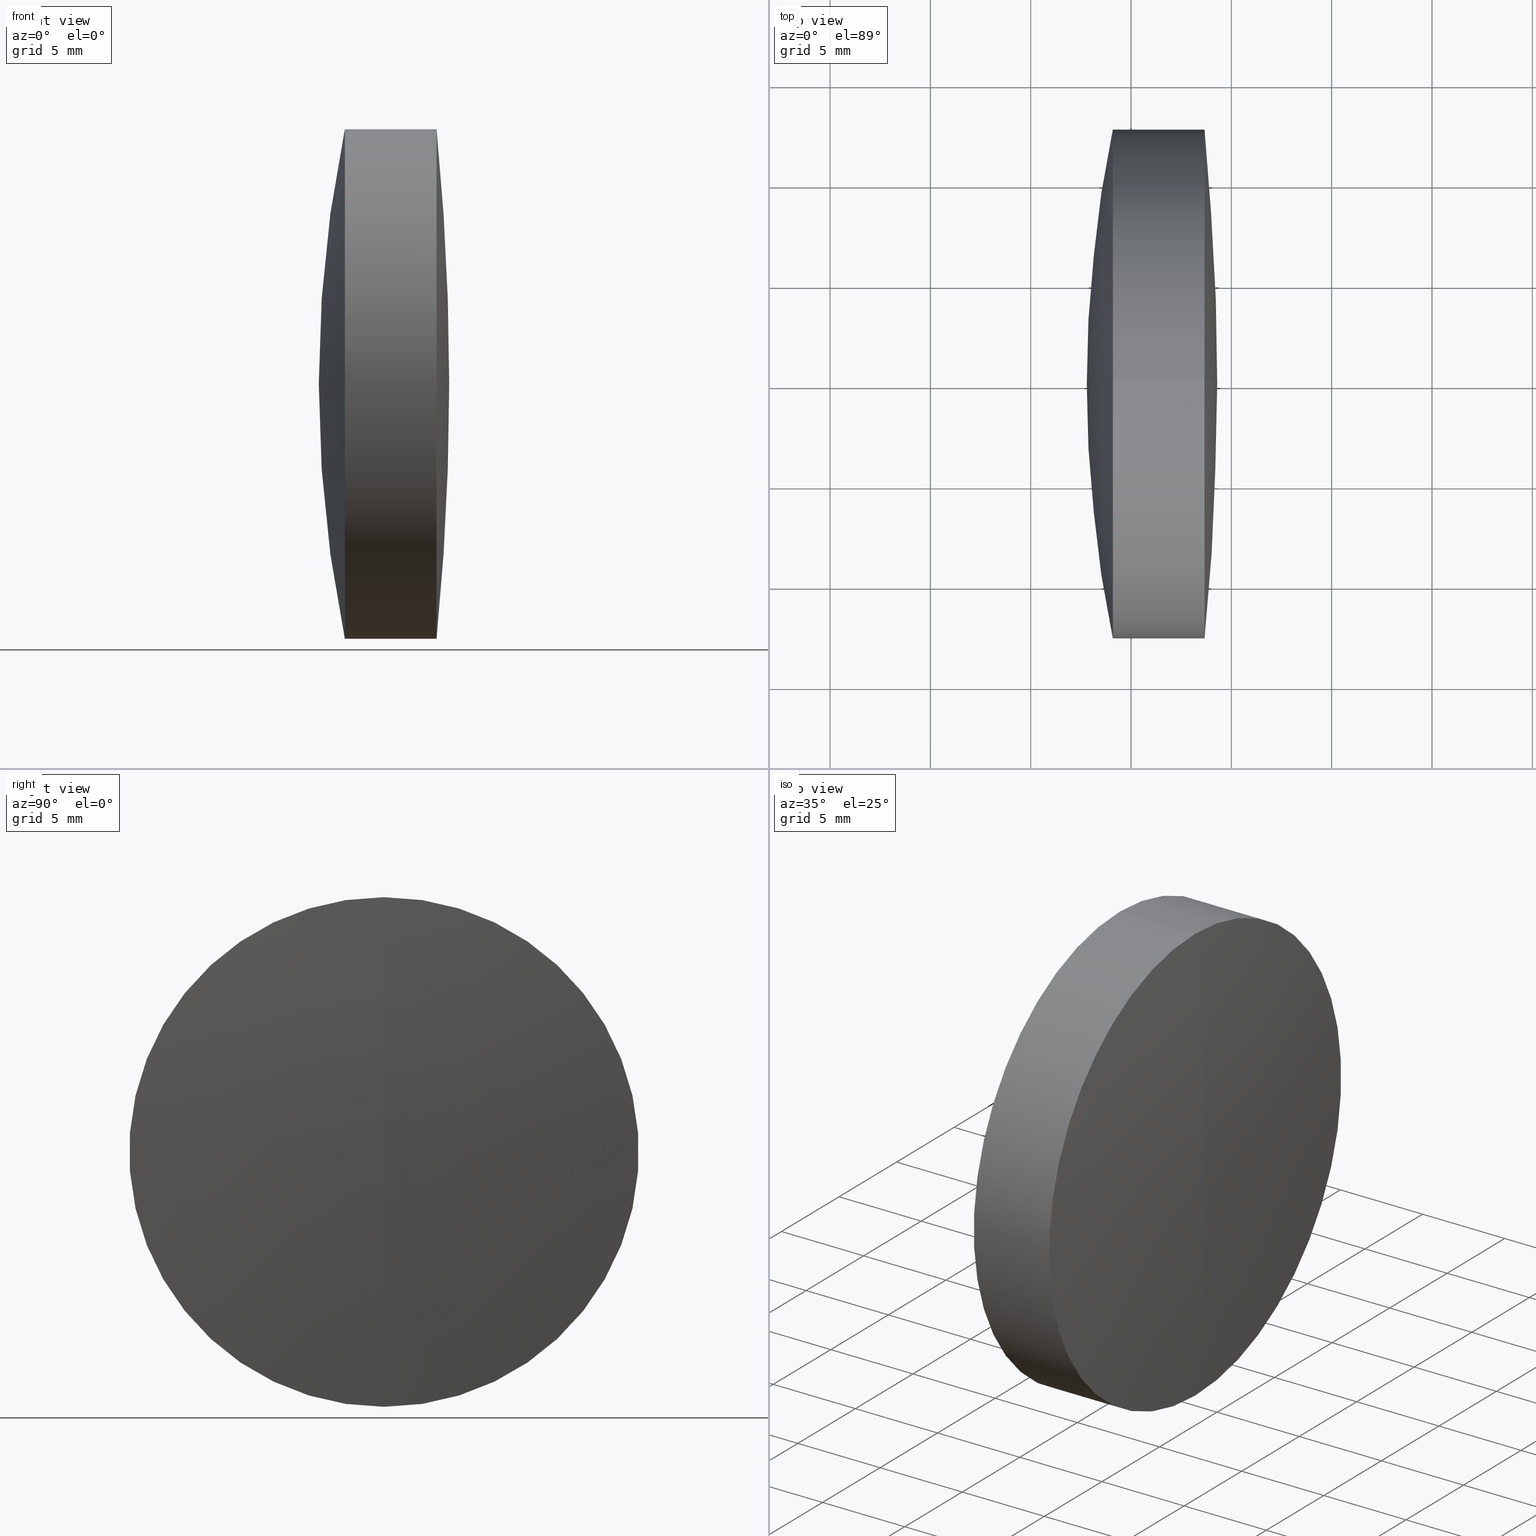
[diagram: canonical four-view strip — front | top / right | iso, engineering-drawing reading convention]
A machine part, canonical four-view strip (front | top / right | iso — engineering-drawing reading convention). The complete STEP part file that produces these views, byte-faithful:
ISO-10303-21;
HEADER;
FILE_DESCRIPTION (( 'STEP AP214' ),
    '1' );
FILE_NAME ('145058.STEP',
    '2019-05-14T02:59:13',
    ( 'user' ),
    ( '΢���й�' ),
    'SwSTEP 2.0',
    'SolidWorks 2016',
    '' );
FILE_SCHEMA (( 'AUTOMOTIVE_DESIGN' ));
ENDSEC;

DATA;
#1 = PRESENTATION_LAYER_ASSIGNMENT (  '', '', ( #212 ) ) ;
#2 = DIRECTION ( 'NONE',  ( 0.0000000000000000000, 0.0000000000000000000, 1.000000000000000000 ) ) ;
#3 = ORIENTED_EDGE ( 'NONE', *, *, #243, .T. ) ;
#4 = DIRECTION ( 'NONE',  ( -1.000000000000000000, -0.0000000000000000000, -0.0000000000000000000 ) ) ;
#5 = VERTEX_POINT ( 'NONE', #275 ) ;
#6 = DIRECTION ( 'NONE',  ( 0.0000000000000000000, 1.000000000000000000, 0.0000000000000000000 ) ) ;
#7 = CARTESIAN_POINT ( 'NONE',  ( -0.5519199926577972300, 0.0000000000000000000, 0.0000000000000000000 ) ) ;
#8 = FACE_OUTER_BOUND ( 'NONE', #26, .T. ) ;
#9 = AXIS2_PLACEMENT_3D ( 'NONE', #210, #184, #222 ) ;
#10 = VERTEX_POINT ( 'NONE', #242 ) ;
#11 = SURFACE_SIDE_STYLE ('',( #321 ) ) ;
#12 = DIRECTION ( 'NONE',  ( -1.000000000000000000, -0.0000000000000000000, -0.0000000000000000000 ) ) ;
#13 = CARTESIAN_POINT ( 'NONE',  ( -0.5519199926577972300, 1.555301434917138600E-015, -12.70000000000000100 ) ) ;
#14 = DIRECTION ( 'NONE',  ( 0.0000000000000000000, 0.0000000000000000000, 1.000000000000000000 ) ) ;
#15 = AXIS2_PLACEMENT_3D ( 'NONE', #263, #107, #134 ) ;
#16 = ORIENTED_EDGE ( 'NONE', *, *, #345, .T. ) ;
#17 = VERTEX_POINT ( 'NONE', #46 ) ;
#18 = CARTESIAN_POINT ( 'NONE',  ( 211.0958458084194300, 0.0000000000000000000, -3.185954776904472300E-015 ) ) ;
#19 = UNCERTAINTY_MEASURE_WITH_UNIT (LENGTH_MEASURE( 1.000000000000000100E-005 ), #328, 'distance_accuracy_value', 'NONE');
#20 = EDGE_CURVE ( 'NONE', #10, #5, #239, .T. ) ;
#21 = PRODUCT_CONTEXT ( 'NONE', #170, 'mechanical' ) ;
#22 = MECHANICAL_DESIGN_GEOMETRIC_PRESENTATION_REPRESENTATION (  '', ( #108 ), #338 ) ;
#23 = PRESENTATION_STYLE_ASSIGNMENT (( #296 ) ) ;
#24 = DIRECTION ( 'NONE',  ( -1.000000000000000000, -0.0000000000000000000, -0.0000000000000000000 ) ) ;
#25 = ORIENTED_EDGE ( 'NONE', *, *, #44, .T. ) ;
#26 = EDGE_LOOP ( 'NONE', ( #308, #291, #292 ) ) ;
#27 = SURFACE_STYLE_USAGE ( .BOTH. , #344 ) ;
#28 = CIRCLE ( 'NONE', #236, 45.70000000000061400 ) ;
#29 = CYLINDRICAL_SURFACE ( 'NONE', #281, 12.69999999999999600 ) ;
#30 = EDGE_CURVE ( 'NONE', #32, #17, #97, .T. ) ;
#31 = EDGE_CURVE ( 'NONE', #260, #186, #28, .T. ) ;
#32 = VERTEX_POINT ( 'NONE', #237 ) ;
#33 = AXIS2_PLACEMENT_3D ( 'NONE', #300, #50, #41 ) ;
#34 = SPHERICAL_SURFACE ( 'NONE', #246, 128.1999999999999900 ) ;
#35 = CARTESIAN_POINT ( 'NONE',  ( 131.0958458084200500, 0.0000000000000000000, 0.0000000000000000000 ) ) ;
#36 = ORIENTED_EDGE ( 'NONE', *, *, #183, .F. ) ;
#37 = EDGE_CURVE ( 'NONE', #32, #132, #86, .T. ) ;
#38 = AXIS2_PLACEMENT_3D ( 'NONE', #65, #149, #2 ) ;
#39 = DIRECTION ( 'NONE',  ( 0.0000000000000000000, -1.224646799147353200E-016, 1.000000000000000000 ) ) ;
#40 =( NAMED_UNIT ( * ) SI_UNIT ( $, .STERADIAN. ) SOLID_ANGLE_UNIT ( ) );
#41 = DIRECTION ( 'NONE',  ( 0.0000000000000000000, -1.224646799147353200E-016, 1.000000000000000000 ) ) ;
#42 = CIRCLE ( 'NONE', #232, 62.79999999999998300 ) ;
#43 = EDGE_CURVE ( 'NONE', #219, #185, #42, .T. ) ;
#44 = EDGE_CURVE ( 'NONE', #62, #132, #200, .T. ) ;
#45 =( LENGTH_UNIT ( ) NAMED_UNIT ( * ) SI_UNIT ( .MILLI., .METRE. ) );
#46 = CARTESIAN_POINT ( 'NONE',  ( 254.9957319130559200, 1.555301434917138400E-015, -12.70000000000000300 ) ) ;
#47 = CLOSED_SHELL ( 'NONE', ( #288, #231, #324, #82, #58, #264 ) ) ;
#48 = ORIENTED_EDGE ( 'NONE', *, *, #182, .T. ) ;
#49 = APPLICATION_PROTOCOL_DEFINITION ( 'draft international standard', 'automotive_design', 1998, #342 ) ;
#50 = DIRECTION ( 'NONE',  ( -0.0000000000000000000, 1.000000000000000000, 1.224646799147353200E-016 ) ) ;
#51 = SPHERICAL_SURFACE ( 'NONE', #131, 62.79999999999998300 ) ;
#52 = CYLINDRICAL_SURFACE ( 'NONE', #199, 12.70000000000000100 ) ;
#53 = AXIS2_PLACEMENT_3D ( 'NONE', #125, #122, #313 ) ;
#54 =( NAMED_UNIT ( * ) PLANE_ANGLE_UNIT ( ) SI_UNIT ( $, .RADIAN. ) );
#55 = MANIFOLD_SOLID_BREP ( '��ת1', #164 ) ;
#56 = ORIENTED_EDGE ( 'NONE', *, *, #57, .F. ) ;
#57 = EDGE_CURVE ( 'NONE', #186, #219, #144, .T. ) ;
#58 = ADVANCED_FACE ( 'NONE', ( #68 ), #335, .T. ) ;
#59 = DIRECTION ( 'NONE',  ( 0.0000000000000000000, 0.0000000000000000000, 1.000000000000000000 ) ) ;
#60 = CARTESIAN_POINT ( 'NONE',  ( 315.5958458084193700, 0.0000000000000000000, -3.914091062452059200E-015 ) ) ;
#61 = CARTESIAN_POINT ( 'NONE',  ( 254.9957319130559200, 0.0000000000000000000, 0.0000000000000000000 ) ) ;
#62 = VERTEX_POINT ( 'NONE', #256 ) ;
#63 = EDGE_LOOP ( 'NONE', ( #251, #25, #235 ) ) ;
#64 = FILL_AREA_STYLE ('',( #76 ) ) ;
#65 = CARTESIAN_POINT ( 'NONE',  ( 254.9957319130559200, 0.0000000000000000000, 0.0000000000000000000 ) ) ;
#66 = DIRECTION ( 'NONE',  ( 0.0000000000000000000, 0.0000000000000000000, 1.000000000000000000 ) ) ;
#67 = DIRECTION ( 'NONE',  ( -0.0000000000000000000, 1.000000000000000000, 1.224646799147353200E-016 ) ) ;
#68 = FACE_OUTER_BOUND ( 'NONE', #320, .T. ) ;
#69 = DIRECTION ( 'NONE',  ( 0.0000000000000000000, -1.000000000000000000, 0.0000000000000000000 ) ) ;
#70 = UNCERTAINTY_MEASURE_WITH_UNIT (LENGTH_MEASURE( 1.000000000000000100E-005 ), #45, 'distance_accuracy_value', 'NONE');
#71 = ORIENTED_EDGE ( 'NONE', *, *, #183, .T. ) ;
#72 = ORIENTED_EDGE ( 'NONE', *, *, #30, .T. ) ;
#73 = DIRECTION ( 'NONE',  ( -0.0000000000000000000, 1.000000000000000000, 1.224646799147353200E-016 ) ) ;
#74 = CARTESIAN_POINT ( 'NONE',  ( 254.9957319130559200, 0.0000000000000000000, 12.69999999999999900 ) ) ;
#75 = APPLICATION_PROTOCOL_DEFINITION ( 'draft international standard', 'automotive_design', 1998, #170 ) ;
#76 = FILL_AREA_STYLE_COLOUR ( '', #245 ) ;
#77 = DIRECTION ( 'NONE',  ( 0.0000000000000000000, 0.0000000000000000000, 1.000000000000000000 ) ) ;
#78 = ORIENTED_EDGE ( 'NONE', *, *, #20, .T. ) ;
#79 = UNCERTAINTY_MEASURE_WITH_UNIT (LENGTH_MEASURE( 1.000000000000000100E-005 ), #172, 'distance_accuracy_value', 'NONE');
#80 = DIRECTION ( 'NONE',  ( 0.0000000000000000000, 1.000000000000000000, 0.0000000000000000000 ) ) ;
#81 = SPHERICAL_SURFACE ( 'NONE', #316, 45.70000000000061400 ) ;
#82 = ADVANCED_FACE ( 'NONE', ( #171 ), #81, .F. ) ;
#83 = DIRECTION ( 'NONE',  ( 0.0000000000000000000, 0.0000000000000000000, 1.000000000000000000 ) ) ;
#84 = AXIS2_PLACEMENT_3D ( 'NONE', #96, #102, #315 ) ;
#85 = ORIENTED_EDGE ( 'NONE', *, *, #30, .F. ) ;
#86 = CIRCLE ( 'NONE', #257, 12.69999999999999600 ) ;
#87 = PRODUCT_DEFINITION_CONTEXT ( 'detailed design', #342, 'design' ) ;
#88 = FACE_OUTER_BOUND ( 'NONE', #329, .T. ) ;
#89 = DIRECTION ( 'NONE',  ( 0.0000000000000000000, 0.0000000000000000000, 1.000000000000000000 ) ) ;
#90 = SPHERICAL_SURFACE ( 'NONE', #223, 45.70000000000061400 ) ;
#91 = AXIS2_PLACEMENT_3D ( 'NONE', #138, #262, #192 ) ;
#92 = EDGE_CURVE ( 'NONE', #5, #219, #279, .T. ) ;
#93 = STYLED_ITEM ( 'NONE', ( #23 ), #160 ) ;
#94 = SURFACE_STYLE_FILL_AREA ( #146 ) ;
#95 = CARTESIAN_POINT ( 'NONE',  ( 258.6652386893144400, 0.0000000000000000000, 0.0000000000000000000 ) ) ;
#96 = CARTESIAN_POINT ( 'NONE',  ( 131.0958458084200500, 0.0000000000000000000, 0.0000000000000000000 ) ) ;
#97 = LINE ( 'NONE', #13, #314 ) ;
#98 = ORIENTED_EDGE ( 'NONE', *, *, #243, .F. ) ;
#99 = CARTESIAN_POINT ( 'NONE',  ( -0.5519199926577972300, 0.0000000000000000000, 12.70000000000000100 ) ) ;
#100 = FACE_OUTER_BOUND ( 'NONE', #196, .T. ) ;
#101 = ORIENTED_EDGE ( 'NONE', *, *, #31, .F. ) ;
#102 = DIRECTION ( 'NONE',  ( 0.0000000000000000000, 1.000000000000000000, 0.0000000000000000000 ) ) ;
#103 = MECHANICAL_DESIGN_GEOMETRIC_PRESENTATION_REPRESENTATION (  '', ( #212 ), #176 ) ;
#104 = UNCERTAINTY_MEASURE_WITH_UNIT (LENGTH_MEASURE( 1.000000000000000100E-005 ), #259, 'distance_accuracy_value', 'NONE');
#105 = ORIENTED_EDGE ( 'NONE', *, *, #182, .F. ) ;
#106 = ADVANCED_FACE ( 'NONE', ( #287 ), #51, .T. ) ;
#107 = DIRECTION ( 'NONE',  ( -1.000000000000000000, -0.0000000000000000000, -0.0000000000000000000 ) ) ;
#108 = STYLED_ITEM ( 'NONE', ( #124 ), #55 ) ;
#109 = FACE_OUTER_BOUND ( 'NONE', #190, .T. ) ;
#110 = CARTESIAN_POINT ( 'NONE',  ( 254.0934068323917900, 0.0000000000000000000, 0.0000000000000000000 ) ) ;
#111 = ORIENTED_EDGE ( 'NONE', *, *, #31, .T. ) ;
#112 = AXIS2_PLACEMENT_3D ( 'NONE', #61, #217, #293 ) ;
#113 =( NAMED_UNIT ( * ) PLANE_ANGLE_UNIT ( ) SI_UNIT ( $, .RADIAN. ) );
#114 = EDGE_LOOP ( 'NONE', ( #118, #303, #269 ) ) ;
#115 = CARTESIAN_POINT ( 'NONE',  ( 211.0958458084194300, 0.0000000000000000000, -3.185954776904472300E-015 ) ) ;
#116 = CARTESIAN_POINT ( 'NONE',  ( 254.9957319130559200, 0.0000000000000000000, 0.0000000000000000000 ) ) ;
#117 =( NAMED_UNIT ( * ) SI_UNIT ( $, .STERADIAN. ) SOLID_ANGLE_UNIT ( ) );
#118 = ORIENTED_EDGE ( 'NONE', *, *, #43, .F. ) ;
#119 = ORIENTED_EDGE ( 'NONE', *, *, #177, .F. ) ;
#120 = FACE_OUTER_BOUND ( 'NONE', #290, .T. ) ;
#121 = DIRECTION ( 'NONE',  ( 0.0000000000000000000, 0.0000000000000000000, 1.000000000000000000 ) ) ;
#122 = DIRECTION ( 'NONE',  ( 0.0000000000000000000, -1.000000000000000000, 0.0000000000000000000 ) ) ;
#123 = EDGE_LOOP ( 'NONE', ( #250, #3, #230 ) ) ;
#124 = PRESENTATION_STYLE_ASSIGNMENT (( #161 ) ) ;
#125 = CARTESIAN_POINT ( 'NONE',  ( 211.0958458084194300, 0.0000000000000000000, -3.185954776904472300E-015 ) ) ;
#126 = DIRECTION ( 'NONE',  ( 0.0000000000000000000, 0.0000000000000000000, 1.000000000000000000 ) ) ;
#127 = CIRCLE ( 'NONE', #326, 12.69999999999999400 ) ;
#128 = AXIS2_PLACEMENT_3D ( 'NONE', #116, #265, #276 ) ;
#129 = EDGE_CURVE ( 'NONE', #17, #140, #255, .T. ) ;
#130 = ADVANCED_FACE ( 'NONE', ( #109 ), #29, .T. ) ;
#131 = AXIS2_PLACEMENT_3D ( 'NONE', #60, #258, #201 ) ;
#132 = VERTEX_POINT ( 'NONE', #154 ) ;
#133 = PRESENTATION_STYLE_ASSIGNMENT (( #27 ) ) ;
#134 = DIRECTION ( 'NONE',  ( 0.0000000000000000000, 0.0000000000000000000, 1.000000000000000000 ) ) ;
#135 = DIRECTION ( 'NONE',  ( 0.0000000000000000000, 1.000000000000000000, 0.0000000000000000000 ) ) ;
#136 = CIRCLE ( 'NONE', #33, 45.70000000000061400 ) ;
#137 = DIRECTION ( 'NONE',  ( 0.0000000000000000000, 1.000000000000000000, 0.0000000000000000000 ) ) ;
#138 = CARTESIAN_POINT ( 'NONE',  ( 211.0958458084194300, 0.0000000000000000000, -3.185954776904472300E-015 ) ) ;
#139 = EDGE_LOOP ( 'NONE', ( #101, #16, #119 ) ) ;
#140 = VERTEX_POINT ( 'NONE', #74 ) ;
#141 = EDGE_CURVE ( 'NONE', #175, #140, #325, .T. ) ;
#142 = DIRECTION ( 'NONE',  ( -1.000000000000000000, -0.0000000000000000000, -0.0000000000000000000 ) ) ;
#143 = CARTESIAN_POINT ( 'NONE',  ( 161.8331716928335000, 0.0000000000000000000, 0.0000000000000000000 ) ) ;
#144 = LINE ( 'NONE', #297, #203 ) ;
#145 = CARTESIAN_POINT ( 'NONE',  ( -0.5519199926577972300, 0.0000000000000000000, 0.0000000000000000000 ) ) ;
#146 = FILL_AREA_STYLE ('',( #253 ) ) ;
#147 = EDGE_CURVE ( 'NONE', #62, #32, #266, .T. ) ;
#148 = AXIS2_PLACEMENT_3D ( 'NONE', #165, #228, #189 ) ;
#149 = DIRECTION ( 'NONE',  ( -1.000000000000000000, -0.0000000000000000000, -0.0000000000000000000 ) ) ;
#150 = ORIENTED_EDGE ( 'NONE', *, *, #44, .F. ) ;
#151 = ORIENTED_EDGE ( 'NONE', *, *, #198, .T. ) ;
#152 = CARTESIAN_POINT ( 'NONE',  ( 0.0000000000000000000, 0.0000000000000000000, 0.0000000000000000000 ) ) ;
#153 = CIRCLE ( 'NONE', #112, 12.69999999999999600 ) ;
#154 = CARTESIAN_POINT ( 'NONE',  ( 258.6652386893144400, 0.0000000000000000000, 12.69999999999999600 ) ) ;
#155 = MECHANICAL_DESIGN_GEOMETRIC_PRESENTATION_REPRESENTATION (  '', ( #93 ), #194 ) ;
#156 = ADVANCED_FACE ( 'NONE', ( #181 ), #214, .T. ) ;
#157 = DIRECTION ( 'NONE',  ( 0.0000000000000000000, 0.0000000000000000000, 1.000000000000000000 ) ) ;
#158 = ORIENTED_EDGE ( 'NONE', *, *, #163, .F. ) ;
#159 = EDGE_LOOP ( 'NONE', ( #98, #277, #71 ) ) ;
#160 = MANIFOLD_SOLID_BREP ( '��ת3', #47 ) ;
#161 = SURFACE_STYLE_USAGE ( .BOTH. , #11 ) ;
#162 = PRODUCT_DEFINITION_FORMATION_WITH_SPECIFIED_SOURCE ( '�κ�', '', #317, .NOT_KNOWN. ) ;
#163 = EDGE_CURVE ( 'NONE', #132, #140, #330, .T. ) ;
#164 = CLOSED_SHELL ( 'NONE', ( #180, #130, #234, #106, #204, #156 ) ) ;
#165 = CARTESIAN_POINT ( 'NONE',  ( 131.0958458084200500, 0.0000000000000000000, 0.0000000000000000000 ) ) ;
#166 = AXIS2_PLACEMENT_3D ( 'NONE', #18, #188, #157 ) ;
#167 = ORIENTED_EDGE ( 'NONE', *, *, #163, .T. ) ;
#168 = AXIS2_PLACEMENT_3D ( 'NONE', #286, #6, #126 ) ;
#169 = DIRECTION ( 'NONE',  ( 0.0000000000000000000, -1.224646799147353200E-016, 1.000000000000000000 ) ) ;
#170 = APPLICATION_CONTEXT ( 'automotive_design' ) ;
#171 = FACE_OUTER_BOUND ( 'NONE', #159, .T. ) ;
#172 =( LENGTH_UNIT ( ) NAMED_UNIT ( * ) SI_UNIT ( .MILLI., .METRE. ) );
#173 = ORIENTED_EDGE ( 'NONE', *, *, #213, .F. ) ;
#174 = CARTESIAN_POINT ( 'NONE',  ( 161.8331716928335000, 0.0000000000000000000, 12.69999999999999600 ) ) ;
#175 = VERTEX_POINT ( 'NONE', #333 ) ;
#176 =( GEOMETRIC_REPRESENTATION_CONTEXT ( 3 ) GLOBAL_UNCERTAINTY_ASSIGNED_CONTEXT ( ( #104 ) ) GLOBAL_UNIT_ASSIGNED_CONTEXT ( ( #259, #54, #227 ) ) REPRESENTATION_CONTEXT ( 'NONE', 'WORKASPACE' ) );
#177 = EDGE_CURVE ( 'NONE', #186, #10, #153, .T. ) ;
#178 = FACE_OUTER_BOUND ( 'NONE', #63, .T. ) ;
#179 = DIRECTION ( 'NONE',  ( -1.000000000000000000, -0.0000000000000000000, -0.0000000000000000000 ) ) ;
#180 = ADVANCED_FACE ( 'NONE', ( #120 ), #90, .T. ) ;
#181 = FACE_OUTER_BOUND ( 'NONE', #139, .T. ) ;
#182 = EDGE_CURVE ( 'NONE', #132, #32, #225, .T. ) ;
#183 = EDGE_CURVE ( 'NONE', #140, #17, #347, .T. ) ;
#184 = DIRECTION ( 'NONE',  ( 0.0000000000000000000, -1.000000000000000000, 0.0000000000000000000 ) ) ;
#185 = VERTEX_POINT ( 'NONE', #319 ) ;
#186 = VERTEX_POINT ( 'NONE', #334 ) ;
#187 = CARTESIAN_POINT ( 'NONE',  ( 211.0958458084194300, 0.0000000000000000000, -3.185954776904472300E-015 ) ) ;
#188 = DIRECTION ( 'NONE',  ( 0.0000000000000000000, 1.000000000000000000, 0.0000000000000000000 ) ) ;
#189 = DIRECTION ( 'NONE',  ( 0.0000000000000000000, 0.0000000000000000000, -1.000000000000000000 ) ) ;
#190 = EDGE_LOOP ( 'NONE', ( #151, #339, #284, #285 ) ) ;
#191 = VECTOR ( 'NONE', #179, 1000.000000000000000 ) ;
#192 = DIRECTION ( 'NONE',  ( 0.0000000000000000000, 0.0000000000000000000, 1.000000000000000000 ) ) ;
#193 = SPHERICAL_SURFACE ( 'NONE', #168, 62.79999999999998300 ) ;
#194 =( GEOMETRIC_REPRESENTATION_CONTEXT ( 3 ) GLOBAL_UNCERTAINTY_ASSIGNED_CONTEXT ( ( #79 ) ) GLOBAL_UNIT_ASSIGNED_CONTEXT ( ( #172, #113, #304 ) ) REPRESENTATION_CONTEXT ( 'NONE', 'WORKASPACE' ) );
#195 = SURFACE_SIDE_STYLE ('',( #298 ) ) ;
#196 = EDGE_LOOP ( 'NONE', ( #48, #72, #36, #158 ) ) ;
#197 = CIRCLE ( 'NONE', #128, 12.69999999999999600 ) ;
#198 = EDGE_CURVE ( 'NONE', #10, #186, #197, .T. ) ;
#199 = AXIS2_PLACEMENT_3D ( 'NONE', #7, #280, #327 ) ;
#200 = CIRCLE ( 'NONE', #148, 128.1999999999999900 ) ;
#201 = DIRECTION ( 'NONE',  ( 0.0000000000000000000, 0.0000000000000000000, 1.000000000000000000 ) ) ;
#202 = CARTESIAN_POINT ( 'NONE',  ( 254.0934068323917900, 0.0000000000000000000, 0.0000000000000000000 ) ) ;
#203 = VECTOR ( 'NONE', #268, 1000.000000000000000 ) ;
#204 = ADVANCED_FACE ( 'NONE', ( #336 ), #340, .T. ) ;
#205 = AXIS2_PLACEMENT_3D ( 'NONE', #273, #69, #247 ) ;
#206 = CARTESIAN_POINT ( 'NONE',  ( 315.5958458084193700, 0.0000000000000000000, -3.914091062452059200E-015 ) ) ;
#207 = EDGE_LOOP ( 'NONE', ( #56, #261, #78, #173 ) ) ;
#208 = ORIENTED_EDGE ( 'NONE', *, *, #37, .T. ) ;
#209 = DIRECTION ( 'NONE',  ( -1.000000000000000000, -0.0000000000000000000, -0.0000000000000000000 ) ) ;
#210 = CARTESIAN_POINT ( 'NONE',  ( 211.0958458084194300, 0.0000000000000000000, -3.185954776904472300E-015 ) ) ;
#211 = CARTESIAN_POINT ( 'NONE',  ( 131.0958458084200500, 0.0000000000000000000, 0.0000000000000000000 ) ) ;
#212 = STYLED_ITEM ( 'NONE', ( #133 ), #294 ) ;
#213 = EDGE_CURVE ( 'NONE', #219, #5, #127, .T. ) ;
#214 = SPHERICAL_SURFACE ( 'NONE', #166, 45.70000000000061400 ) ;
#215 = CARTESIAN_POINT ( 'NONE',  ( 254.9957319130559200, 0.0000000000000000000, 0.0000000000000000000 ) ) ;
#216 = AXIS2_PLACEMENT_3D ( 'NONE', #211, #73, #169 ) ;
#217 = DIRECTION ( 'NONE',  ( -1.000000000000000000, -0.0000000000000000000, -0.0000000000000000000 ) ) ;
#218 = ORIENTED_EDGE ( 'NONE', *, *, #198, .F. ) ;
#219 = VERTEX_POINT ( 'NONE', #241 ) ;
#220 = ORIENTED_EDGE ( 'NONE', *, *, #147, .T. ) ;
#221 = PRODUCT_RELATED_PRODUCT_CATEGORY ( 'part', '', ( #317 ) ) ;
#222 = DIRECTION ( 'NONE',  ( 0.0000000000000000000, 0.0000000000000000000, -1.000000000000000000 ) ) ;
#223 = AXIS2_PLACEMENT_3D ( 'NONE', #115, #135, #66 ) ;
#224 = ORIENTED_EDGE ( 'NONE', *, *, #345, .F. ) ;
#225 = CIRCLE ( 'NONE', #289, 12.69999999999999600 ) ;
#226 = CARTESIAN_POINT ( 'NONE',  ( 258.6652386893144400, 0.0000000000000000000, 0.0000000000000000000 ) ) ;
#227 =( NAMED_UNIT ( * ) SI_UNIT ( $, .STERADIAN. ) SOLID_ANGLE_UNIT ( ) );
#228 = DIRECTION ( 'NONE',  ( 0.0000000000000000000, -1.000000000000000000, 0.0000000000000000000 ) ) ;
#229 = DIRECTION ( 'NONE',  ( -1.000000000000000000, -0.0000000000000000000, -0.0000000000000000000 ) ) ;
#230 = ORIENTED_EDGE ( 'NONE', *, *, #129, .T. ) ;
#231 = ADVANCED_FACE ( 'NONE', ( #100 ), #52, .T. ) ;
#232 = AXIS2_PLACEMENT_3D ( 'NONE', #206, #67, #39 ) ;
#233 = COLOUR_RGB ( '',1.000000000000000000, 1.000000000000000000, 1.000000000000000000 ) ;
#234 = ADVANCED_FACE ( 'NONE', ( #8 ), #193, .T. ) ;
#235 = ORIENTED_EDGE ( 'NONE', *, *, #37, .F. ) ;
#236 = AXIS2_PLACEMENT_3D ( 'NONE', #307, #278, #312 ) ;
#237 = CARTESIAN_POINT ( 'NONE',  ( 258.6652386893144400, 1.555301434917138200E-015, -12.69999999999999600 ) ) ;
#238 = PRODUCT_DEFINITION ( 'δ֪', '', #162, #87 ) ;
#239 = LINE ( 'NONE', #174, #191 ) ;
#240 = ORIENTED_EDGE ( 'NONE', *, *, #129, .F. ) ;
#241 = CARTESIAN_POINT ( 'NONE',  ( 254.0934068323917900, 1.555301434917140400E-015, -12.70000000000001900 ) ) ;
#242 = CARTESIAN_POINT ( 'NONE',  ( 254.9957319130559200, 0.0000000000000000000, 12.69999999999999600 ) ) ;
#243 = EDGE_CURVE ( 'NONE', #175, #17, #136, .T. ) ;
#244 = PRODUCT_DEFINITION_SHAPE ( 'NONE', 'NONE',  #238 ) ;
#245 = COLOUR_RGB ( '',1.000000000000000000, 1.000000000000000000, 1.000000000000000000 ) ;
#246 = AXIS2_PLACEMENT_3D ( 'NONE', #35, #80, #302 ) ;
#247 = DIRECTION ( 'NONE',  ( 0.0000000000000000000, 0.0000000000000000000, -1.000000000000000000 ) ) ;
#248 = DIRECTION ( 'NONE',  ( -1.000000000000000000, -0.0000000000000000000, -0.0000000000000000000 ) ) ;
#249 =( NAMED_UNIT ( * ) PLANE_ANGLE_UNIT ( ) SI_UNIT ( $, .RADIAN. ) );
#250 = ORIENTED_EDGE ( 'NONE', *, *, #141, .F. ) ;
#251 = ORIENTED_EDGE ( 'NONE', *, *, #147, .F. ) ;
#252 = FACE_OUTER_BOUND ( 'NONE', #123, .T. ) ;
#253 = FILL_AREA_STYLE_COLOUR ( '', #270 ) ;
#254 = PRESENTATION_LAYER_ASSIGNMENT (  '', '', ( #93 ) ) ;
#255 = CIRCLE ( 'NONE', #38, 12.70000000000000600 ) ;
#256 = CARTESIAN_POINT ( 'NONE',  ( 259.2958458084200400, 0.0000000000000000000, 7.849985982534533100E-015 ) ) ;
#257 = AXIS2_PLACEMENT_3D ( 'NONE', #95, #4, #59 ) ;
#258 = DIRECTION ( 'NONE',  ( 0.0000000000000000000, 1.000000000000000000, 0.0000000000000000000 ) ) ;
#259 =( LENGTH_UNIT ( ) NAMED_UNIT ( * ) SI_UNIT ( .MILLI., .METRE. ) );
#260 = VERTEX_POINT ( 'NONE', #306 ) ;
#261 = ORIENTED_EDGE ( 'NONE', *, *, #177, .T. ) ;
#262 = DIRECTION ( 'NONE',  ( 0.0000000000000000000, 1.000000000000000000, 0.0000000000000000000 ) ) ;
#263 = CARTESIAN_POINT ( 'NONE',  ( 161.8331716928335000, 0.0000000000000000000, 0.0000000000000000000 ) ) ;
#264 = ADVANCED_FACE ( 'NONE', ( #178 ), #34, .T. ) ;
#265 = DIRECTION ( 'NONE',  ( -1.000000000000000000, -0.0000000000000000000, -0.0000000000000000000 ) ) ;
#266 = CIRCLE ( 'NONE', #216, 128.1999999999999900 ) ;
#267 = SPHERICAL_SURFACE ( 'NONE', #84, 128.1999999999999900 ) ;
#268 = DIRECTION ( 'NONE',  ( -1.000000000000000000, -0.0000000000000000000, -0.0000000000000000000 ) ) ;
#269 = ORIENTED_EDGE ( 'NONE', *, *, #274, .T. ) ;
#270 = COLOUR_RGB ( '',1.000000000000000000, 1.000000000000000000, 1.000000000000000000 ) ;
#271 = DIRECTION ( 'NONE',  ( 0.0000000000000000000, 0.0000000000000000000, 1.000000000000000000 ) ) ;
#272 = SHAPE_DEFINITION_REPRESENTATION ( #244, #294 ) ;
#273 = CARTESIAN_POINT ( 'NONE',  ( 315.5958458084193700, 0.0000000000000000000, -3.914091062452059200E-015 ) ) ;
#274 = EDGE_CURVE ( 'NONE', #5, #185, #323, .T. ) ;
#275 = CARTESIAN_POINT ( 'NONE',  ( 254.0934068323917900, 0.0000000000000000000, 12.70000000000001500 ) ) ;
#276 = DIRECTION ( 'NONE',  ( 0.0000000000000000000, 0.0000000000000000000, 1.000000000000000000 ) ) ;
#277 = ORIENTED_EDGE ( 'NONE', *, *, #141, .T. ) ;
#278 = DIRECTION ( 'NONE',  ( -0.0000000000000000000, 1.000000000000000000, 1.224646799147353200E-016 ) ) ;
#279 = CIRCLE ( 'NONE', #310, 12.69999999999999400 ) ;
#280 = DIRECTION ( 'NONE',  ( -1.000000000000000000, -0.0000000000000000000, -0.0000000000000000000 ) ) ;
#281 = AXIS2_PLACEMENT_3D ( 'NONE', #143, #331, #77 ) ;
#282 =( NAMED_UNIT ( * ) PLANE_ANGLE_UNIT ( ) SI_UNIT ( $, .RADIAN. ) );
#283 = DIRECTION ( 'NONE',  ( 1.000000000000000000, 0.0000000000000000000, 0.0000000000000000000 ) ) ;
#284 = ORIENTED_EDGE ( 'NONE', *, *, #92, .F. ) ;
#285 = ORIENTED_EDGE ( 'NONE', *, *, #20, .F. ) ;
#286 = CARTESIAN_POINT ( 'NONE',  ( 315.5958458084193700, 0.0000000000000000000, -3.914091062452059200E-015 ) ) ;
#287 = FACE_OUTER_BOUND ( 'NONE', #114, .T. ) ;
#288 = ADVANCED_FACE ( 'NONE', ( #88 ), #267, .T. ) ;
#289 = AXIS2_PLACEMENT_3D ( 'NONE', #226, #337, #322 ) ;
#290 = EDGE_LOOP ( 'NONE', ( #224, #111, #218 ) ) ;
#291 = ORIENTED_EDGE ( 'NONE', *, *, #43, .T. ) ;
#292 = ORIENTED_EDGE ( 'NONE', *, *, #274, .F. ) ;
#293 = DIRECTION ( 'NONE',  ( 0.0000000000000000000, 0.0000000000000000000, 1.000000000000000000 ) ) ;
#294 = ADVANCED_BREP_SHAPE_REPRESENTATION ( '145058', ( #55, #160, #318 ), #301 ) ;
#295 = DIRECTION ( 'NONE',  ( 0.0000000000000000000, 0.0000000000000000000, 1.000000000000000000 ) ) ;
#296 = SURFACE_STYLE_USAGE ( .BOTH. , #195 ) ;
#297 = CARTESIAN_POINT ( 'NONE',  ( 161.8331716928335000, 1.555301434917138000E-015, -12.69999999999999600 ) ) ;
#298 = SURFACE_STYLE_FILL_AREA ( #64 ) ;
#299 = AXIS2_PLACEMENT_3D ( 'NONE', #145, #24, #295 ) ;
#300 = CARTESIAN_POINT ( 'NONE',  ( 211.0958458084194300, 0.0000000000000000000, -3.185954776904472300E-015 ) ) ;
#301 =( GEOMETRIC_REPRESENTATION_CONTEXT ( 3 ) GLOBAL_UNCERTAINTY_ASSIGNED_CONTEXT ( ( #70 ) ) GLOBAL_UNIT_ASSIGNED_CONTEXT ( ( #45, #282, #117 ) ) REPRESENTATION_CONTEXT ( 'NONE', 'WORKASPACE' ) );
#302 = DIRECTION ( 'NONE',  ( 0.0000000000000000000, 0.0000000000000000000, 1.000000000000000000 ) ) ;
#303 = ORIENTED_EDGE ( 'NONE', *, *, #213, .T. ) ;
#304 =( NAMED_UNIT ( * ) SI_UNIT ( $, .STERADIAN. ) SOLID_ANGLE_UNIT ( ) );
#305 = SPHERICAL_SURFACE ( 'NONE', #91, 45.70000000000061400 ) ;
#306 = CARTESIAN_POINT ( 'NONE',  ( 256.7958458084200400, 0.0000000000000000000, -3.876368408527329000E-016 ) ) ;
#307 = CARTESIAN_POINT ( 'NONE',  ( 211.0958458084194300, 0.0000000000000000000, -3.185954776904472300E-015 ) ) ;
#308 = ORIENTED_EDGE ( 'NONE', *, *, #92, .T. ) ;
#309 = AXIS2_PLACEMENT_3D ( 'NONE', #215, #248, #271 ) ;
#310 = AXIS2_PLACEMENT_3D ( 'NONE', #202, #229, #83 ) ;
#311 = VECTOR ( 'NONE', #142, 1000.000000000000000 ) ;
#312 = DIRECTION ( 'NONE',  ( 0.0000000000000000000, -1.224646799147353200E-016, 1.000000000000000000 ) ) ;
#313 = DIRECTION ( 'NONE',  ( 0.0000000000000000000, 0.0000000000000000000, -1.000000000000000000 ) ) ;
#314 = VECTOR ( 'NONE', #209, 1000.000000000000000 ) ;
#315 = DIRECTION ( 'NONE',  ( 0.0000000000000000000, 0.0000000000000000000, 1.000000000000000000 ) ) ;
#316 = AXIS2_PLACEMENT_3D ( 'NONE', #187, #137, #121 ) ;
#317 = PRODUCT ( '145058', '145058', '', ( #21 ) ) ;
#318 = AXIS2_PLACEMENT_3D ( 'NONE', #152, #14, #283 ) ;
#319 = CARTESIAN_POINT ( 'NONE',  ( 252.7958458084194100, 0.0000000000000000000, -6.870011312937094700E-017 ) ) ;
#320 = EDGE_LOOP ( 'NONE', ( #85, #208, #167, #240 ) ) ;
#321 = SURFACE_STYLE_FILL_AREA ( #343 ) ;
#322 = DIRECTION ( 'NONE',  ( 0.0000000000000000000, 0.0000000000000000000, 1.000000000000000000 ) ) ;
#323 = CIRCLE ( 'NONE', #205, 62.79999999999998300 ) ;
#324 = ADVANCED_FACE ( 'NONE', ( #252 ), #305, .F. ) ;
#325 = CIRCLE ( 'NONE', #9, 45.70000000000061400 ) ;
#326 = AXIS2_PLACEMENT_3D ( 'NONE', #110, #12, #89 ) ;
#327 = DIRECTION ( 'NONE',  ( 0.0000000000000000000, 0.0000000000000000000, 1.000000000000000000 ) ) ;
#328 =( LENGTH_UNIT ( ) NAMED_UNIT ( * ) SI_UNIT ( .MILLI., .METRE. ) );
#329 = EDGE_LOOP ( 'NONE', ( #150, #220, #105 ) ) ;
#330 = LINE ( 'NONE', #99, #311 ) ;
#331 = DIRECTION ( 'NONE',  ( -1.000000000000000000, -0.0000000000000000000, -0.0000000000000000000 ) ) ;
#332 = PRESENTATION_LAYER_ASSIGNMENT (  '', '', ( #108 ) ) ;
#333 = CARTESIAN_POINT ( 'NONE',  ( 256.7958458084200400, 0.0000000000000000000, -3.876368408527329000E-016 ) ) ;
#334 = CARTESIAN_POINT ( 'NONE',  ( 254.9957319130559200, 1.555301434917138000E-015, -12.69999999999999600 ) ) ;
#335 = CYLINDRICAL_SURFACE ( 'NONE', #299, 12.70000000000000100 ) ;
#336 = FACE_OUTER_BOUND ( 'NONE', #207, .T. ) ;
#337 = DIRECTION ( 'NONE',  ( -1.000000000000000000, -0.0000000000000000000, -0.0000000000000000000 ) ) ;
#338 =( GEOMETRIC_REPRESENTATION_CONTEXT ( 3 ) GLOBAL_UNCERTAINTY_ASSIGNED_CONTEXT ( ( #19 ) ) GLOBAL_UNIT_ASSIGNED_CONTEXT ( ( #328, #249, #40 ) ) REPRESENTATION_CONTEXT ( 'NONE', 'WORKASPACE' ) );
#339 = ORIENTED_EDGE ( 'NONE', *, *, #57, .T. ) ;
#340 = CYLINDRICAL_SURFACE ( 'NONE', #15, 12.69999999999999600 ) ;
#341 = CIRCLE ( 'NONE', #53, 45.70000000000061400 ) ;
#342 = APPLICATION_CONTEXT ( 'automotive_design' ) ;
#343 = FILL_AREA_STYLE ('',( #346 ) ) ;
#344 = SURFACE_SIDE_STYLE ('',( #94 ) ) ;
#345 = EDGE_CURVE ( 'NONE', #260, #10, #341, .T. ) ;
#346 = FILL_AREA_STYLE_COLOUR ( '', #233 ) ;
#347 = CIRCLE ( 'NONE', #309, 12.70000000000000600 ) ;
ENDSEC;
END-ISO-10303-21;
